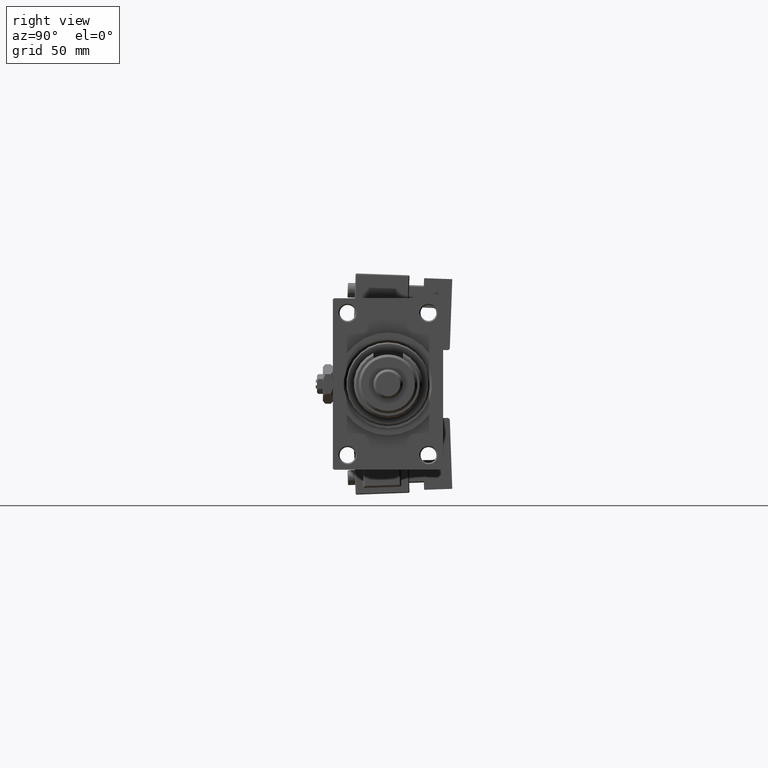
[diagram: clean part render]
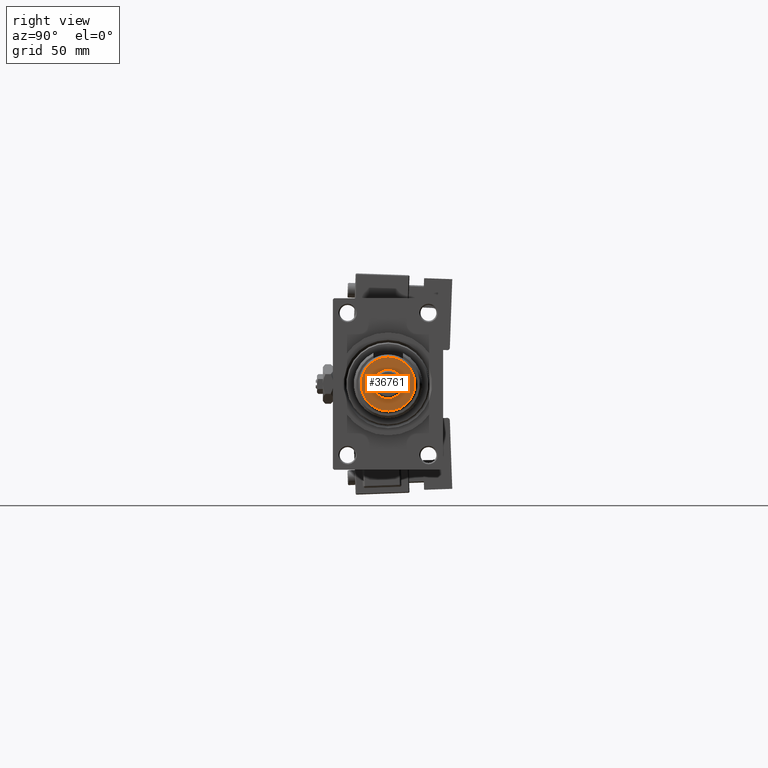
[diagram: same view with one face highlighted and labeled with its STEP entity id]
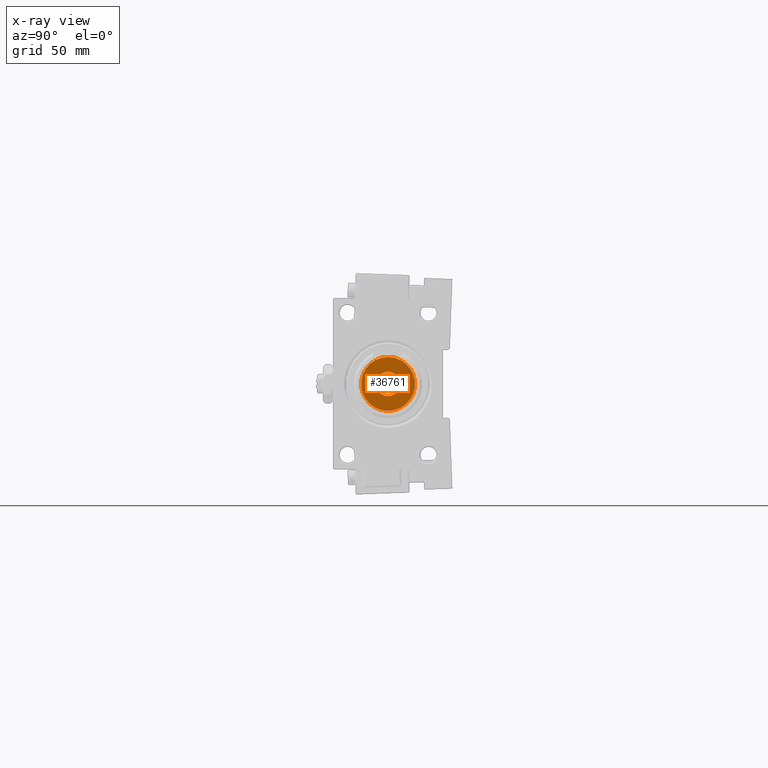
[diagram: x-ray of the same camera — body ghosted, the highlighted face saturated]
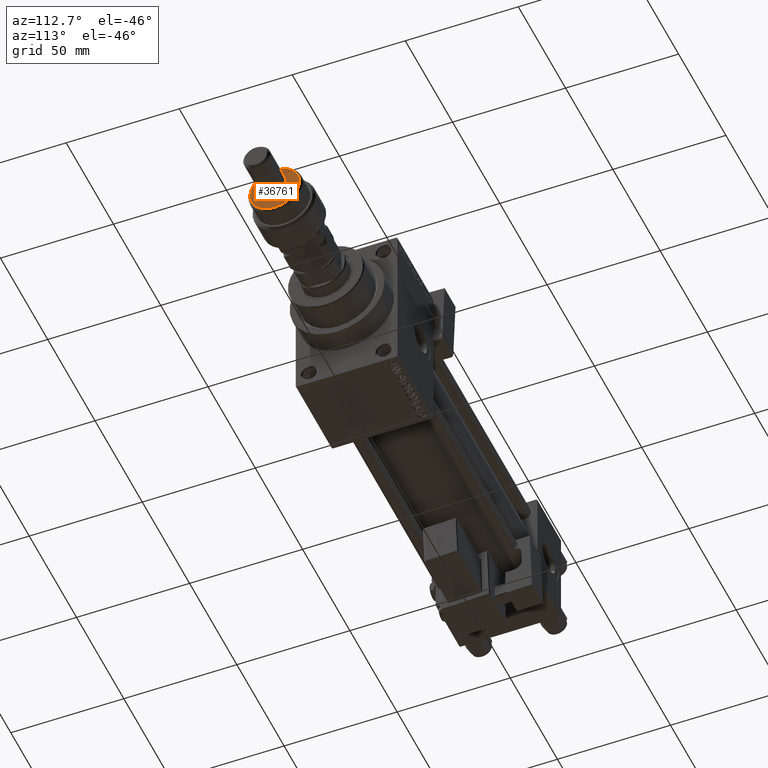
[diagram: same view with one face highlighted and labeled with its STEP entity id]
A machine part, right view. The second image highlights one B-rep face of the part: STEP entity #36761.
The next image is the same camera in x-ray: the body ghosted, the highlighted face saturated — about 0% of this face is hidden behind the body in this view.
A second angle (auxiliary view) of the same face is appended — the face is thin or edge-on in the first view.
In plain terms, the highlighted planar face has unit normal (1, 0, 0).
Its self-contained STEP definition (entity closure, byte-faithful):
#318 = CARTESIAN_POINT ( 'NONE',  ( 0.000000000000000000, 0.000000000000000000, 22.00000000000000000 ) ) ;
#2856 = DIRECTION ( 'NONE',  ( 0.000000000000000000, 0.000000000000000000, 1.000000000000000000 ) ) ;
#2973 = CARTESIAN_POINT ( 'NONE',  ( 10.99999999999999645, 1.408343819019456176E-15, 22.00000000000000000 ) ) ;
#3697 = EDGE_LOOP ( 'NONE', ( #22203, #36229 ) ) ;
#4440 = DIRECTION ( 'NONE',  ( 1.000000000000000000, 0.000000000000000000, 0.000000000000000000 ) ) ;
#4944 = EDGE_CURVE ( 'NONE', #34789, #24053, #25046, .T. ) ;
#12465 = DIRECTION ( 'NONE',  ( 1.000000000000000000, 0.000000000000000000, -0.000000000000000000 ) ) ;
#12956 = CARTESIAN_POINT ( 'NONE',  ( 5.000000000000000000, 6.123233995736766282E-16, 22.00000000000000000 ) ) ;
#15347 = CARTESIAN_POINT ( 'NONE',  ( -5.000000000000000000, 0.000000000000000000, 22.00000000000000000 ) ) ;
#19860 = EDGE_LOOP ( 'NONE', ( #50078, #34985 ) ) ;
#20892 = CIRCLE ( 'NONE', #43612, 5.000000000000000000 ) ;
#22203 = ORIENTED_EDGE ( 'NONE', *, *, #25247, .T. ) ;
#23004 = CIRCLE ( 'NONE', #50135, 10.99999999999999645 ) ;
#23745 = CARTESIAN_POINT ( 'NONE',  ( 0.000000000000000000, 0.000000000000000000, 22.00000000000000000 ) ) ;
#24053 = VERTEX_POINT ( 'NONE', #44321 ) ;
#25046 = CIRCLE ( 'NONE', #48643, 10.99999999999999645 ) ;
#25247 = EDGE_CURVE ( 'NONE', #24053, #34789, #23004, .T. ) ;
#27128 = CARTESIAN_POINT ( 'NONE',  ( 0.000000000000000000, 0.000000000000000000, 22.00000000000000000 ) ) ;
#27660 = DIRECTION ( 'NONE',  ( 1.000000000000000000, 0.000000000000000000, 0.000000000000000000 ) ) ;
#28665 = FACE_OUTER_BOUND ( 'NONE', #3697, .T. ) ;
#30964 = DIRECTION ( 'NONE',  ( 0.000000000000000000, 0.000000000000000000, 1.000000000000000000 ) ) ;
#33336 = CIRCLE ( 'NONE', #34203, 5.000000000000000000 ) ;
#34203 = AXIS2_PLACEMENT_3D ( 'NONE', #318, #30964, #50764 ) ;
#34786 = AXIS2_PLACEMENT_3D ( 'NONE', #23745, #2856, #12465 ) ;
#34789 = VERTEX_POINT ( 'NONE', #2973 ) ;
#34985 = ORIENTED_EDGE ( 'NONE', *, *, #43876, .F. ) ;
#36229 = ORIENTED_EDGE ( 'NONE', *, *, #4944, .T. ) ;
#36346 = FACE_BOUND ( 'NONE', #19860, .T. ) ;
#36761 = ADVANCED_FACE ( 'NONE', ( #28665, #36346 ), #41258, .T. ) ;
#37911 = CARTESIAN_POINT ( 'NONE',  ( 0.000000000000000000, 0.000000000000000000, 22.00000000000000000 ) ) ;
#39243 = DIRECTION ( 'NONE',  ( 0.000000000000000000, 0.000000000000000000, 1.000000000000000000 ) ) ;
#39343 = VERTEX_POINT ( 'NONE', #15347 ) ;
#41258 = PLANE ( 'NONE',  #34786 ) ;
#42302 = DIRECTION ( 'NONE',  ( 0.000000000000000000, 0.000000000000000000, 1.000000000000000000 ) ) ;
#42634 = VERTEX_POINT ( 'NONE', #12956 ) ;
#43612 = AXIS2_PLACEMENT_3D ( 'NONE', #27128, #48722, #27660 ) ;
#43876 = EDGE_CURVE ( 'NONE', #42634, #39343, #33336, .T. ) ;
#44321 = CARTESIAN_POINT ( 'NONE',  ( -10.99999999999999645, 0.000000000000000000, 22.00000000000000000 ) ) ;
#46917 = DIRECTION ( 'NONE',  ( 1.000000000000000000, 0.000000000000000000, 0.000000000000000000 ) ) ;
#48643 = AXIS2_PLACEMENT_3D ( 'NONE', #37911, #42302, #4440 ) ;
#48722 = DIRECTION ( 'NONE',  ( 0.000000000000000000, 0.000000000000000000, 1.000000000000000000 ) ) ;
#50078 = ORIENTED_EDGE ( 'NONE', *, *, #51590, .F. ) ;
#50135 = AXIS2_PLACEMENT_3D ( 'NONE', #51278, #39243, #46917 ) ;
#50764 = DIRECTION ( 'NONE',  ( 1.000000000000000000, 0.000000000000000000, 0.000000000000000000 ) ) ;
#51278 = CARTESIAN_POINT ( 'NONE',  ( 0.000000000000000000, 0.000000000000000000, 22.00000000000000000 ) ) ;
#51590 = EDGE_CURVE ( 'NONE', #39343, #42634, #20892, .T. ) ;